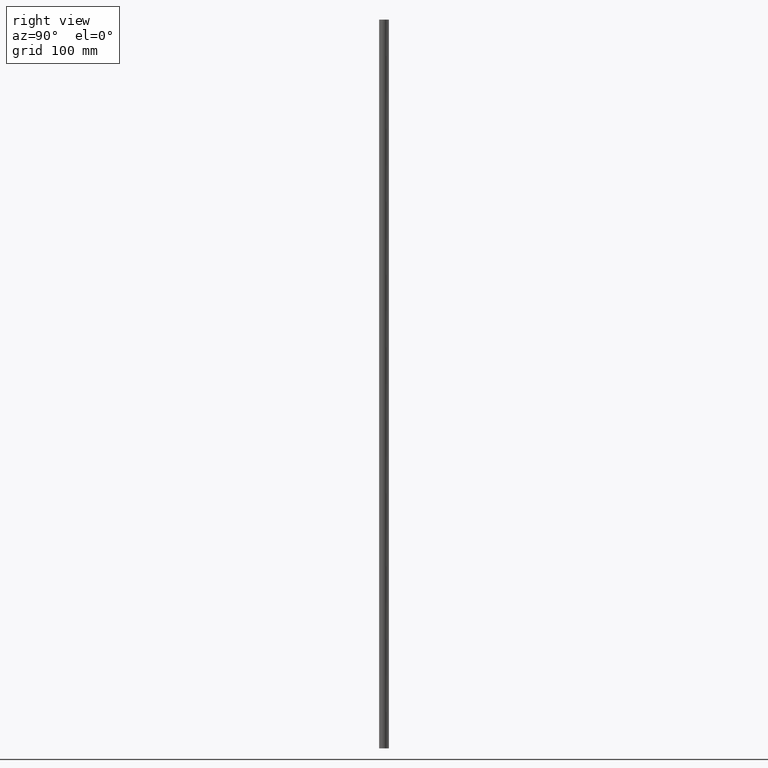
[diagram: clean part render]
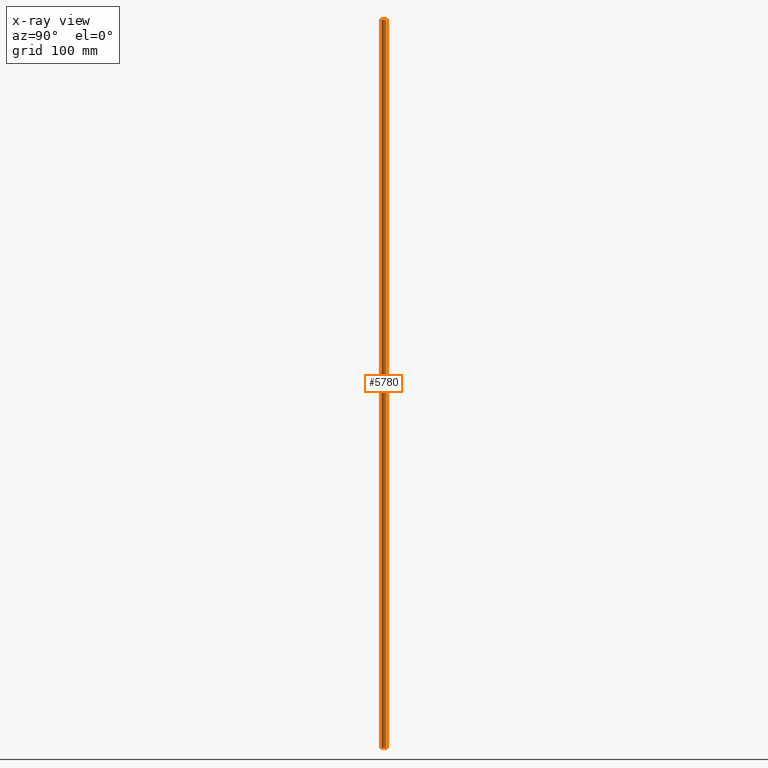
[diagram: x-ray — body ghosted, one internal face saturated and labeled with its STEP entity id]
A machine part, right view, then the same camera in x-ray: the body is ghosted and one INTERNAL B-rep face — a face not visible from any outside direction — is saturated and labeled: STEP entity #5780.
In plain terms, the highlighted face is a freeform B-spline surface patch.
Its self-contained STEP definition (entity closure, byte-faithful):
#5678=CARTESIAN_POINT('',(0.236068469313517,-1.986019052727332,615.000000000000230));
#5679=CARTESIAN_POINT('',(0.179229457275955,-1.992775230897211,615.000000000000230));
#5680=CARTESIAN_POINT('',(0.122097079069714,-1.996269596843733,615.000000000000110));
#5681=CARTESIAN_POINT('',(-1.874172517774020,-2.118366675913447,615.0));
#5682=CARTESIAN_POINT('',(-1.996269596843733,-0.122097079069714,615.000000000000110));
#5683=CARTESIAN_POINT('',(-2.118366675913447,1.874172517774020,615.0));
#5684=CARTESIAN_POINT('',(-0.122097079069714,1.996269596843733,615.000000000000110));
#5685=CARTESIAN_POINT('',(0.236068469313517,-1.986019052727332,-15.375000000000005));
#5686=CARTESIAN_POINT('',(0.179229457275955,-1.992775230897211,-15.375000000000004));
#5687=CARTESIAN_POINT('',(0.122097079069714,-1.996269596843733,-15.375000000000000));
#5688=CARTESIAN_POINT('',(-1.874172517774020,-2.118366675913447,-15.375000000000002));
#5689=CARTESIAN_POINT('',(-1.996269596843733,-0.122097079069714,-15.375000000000000));
#5690=CARTESIAN_POINT('',(-2.118366675913447,1.874172517774020,-15.375000000000002));
#5691=CARTESIAN_POINT('',(-0.122097079069714,1.996269596843733,-15.375000000000000));
#5699=(BOUNDED_SURFACE()B_SPLINE_SURFACE(2,1,((#5678,#5685),(#5679,#5686),(#5680,#5687),(#5681,#5688),(#5682,#5689),(#5683,#5690),(#5684,#5691)),.UNSPECIFIED.,.F.,.F.,.U.)B_SPLINE_SURFACE_WITH_KNOTS((3,2,2,3),(2,2),(0.0,0.132548339959391,3.446256838944149,6.759965337928908),(0.0,630.375000000000230),.UNSPECIFIED.)GEOMETRIC_REPRESENTATION_ITEM()RATIONAL_B_SPLINE_SURFACE(((0.977505800795127,0.977505800795127),(0.988284271247462,0.988284271247462),(1.0,1.0),(0.707106781186548,0.707106781186548),(1.0,1.0),(0.707106781186548,0.707106781186548),(1.0,1.0)))REPRESENTATION_ITEM('')SURFACE());
#5700=CARTESIAN_POINT('',(0.236068472497990,-1.986019052348810,-2.634989E-014));
#5701=VERTEX_POINT('',#5700);
#5702=CARTESIAN_POINT('',(-2.0,0.0,0.0));
#5703=VERTEX_POINT('',#5702);
#5704=CARTESIAN_POINT('',(0.236068472497990,-1.986019052348810,-2.634989E-014));
#5705=CARTESIAN_POINT('',(0.118448242521959,-2.000000000000000,0.0));
#5706=CARTESIAN_POINT('',(0.0,-2.0,0.0));
#5707=CARTESIAN_POINT('',(-2.000000000000000,-2.000000000000000,0.0));
#5708=CARTESIAN_POINT('',(-2.0,0.0,0.0));
#5716=(BOUNDED_CURVE()B_SPLINE_CURVE(2,(#5704,#5705,#5706,#5707,#5708),.UNSPECIFIED.,.F.,.U.)B_SPLINE_CURVE_WITH_KNOTS((3,2,3),(0.229562472973669,0.250000000000000,0.500000000000000),.UNSPECIFIED.)CURVE()GEOMETRIC_REPRESENTATION_ITEM()RATIONAL_B_SPLINE_CURVE((0.956026753125593,0.976055947698684,1.0,0.707106781186548,1.0))REPRESENTATION_ITEM(''));
#5717=EDGE_CURVE('',#5701,#5703,#5716,.T.);
#5718=ORIENTED_EDGE('',*,*,#5717,.F.);
#5719=CARTESIAN_POINT('',(0.236068472497993,-1.986019052348810,600.0));
#5720=VERTEX_POINT('',#5719);
#5721=CARTESIAN_POINT('',(0.236068472497993,-1.986019052348810,600.0));
#5722=CARTESIAN_POINT('',(0.236068472497990,-1.986019052348810,-2.634989E-014));
#5723=QUASI_UNIFORM_CURVE('',1,(#5721,#5722),.UNSPECIFIED.,.F.,.U.);
#5724=EDGE_CURVE('',#5720,#5701,#5723,.T.);
#5725=ORIENTED_EDGE('',*,*,#5724,.F.);
#5726=CARTESIAN_POINT('',(-2.0,0.0,600.0));
#5727=VERTEX_POINT('',#5726);
#5728=CARTESIAN_POINT('',(0.236068472497993,-1.986019052348809,600.0));
#5729=CARTESIAN_POINT('',(0.118448242521962,-2.0,600.0));
#5730=CARTESIAN_POINT('',(0.0,-2.0,600.0));
#5731=CARTESIAN_POINT('',(-2.000000000000000,-2.000000000000000,599.999999999999890));
#5732=CARTESIAN_POINT('',(-2.0,0.0,600.0));
#5740=(BOUNDED_CURVE()B_SPLINE_CURVE(2,(#5728,#5729,#5730,#5731,#5732),.UNSPECIFIED.,.F.,.U.)B_SPLINE_CURVE_WITH_KNOTS((3,2,3),(0.229562472973669,0.250000000000000,0.500000000000000),.UNSPECIFIED.)CURVE()GEOMETRIC_REPRESENTATION_ITEM()RATIONAL_B_SPLINE_CURVE((0.956026753125591,0.976055947698684,1.0,0.707106781186548,1.0))REPRESENTATION_ITEM(''));
#5741=EDGE_CURVE('',#5720,#5727,#5740,.T.);
#5742=ORIENTED_EDGE('',*,*,#5741,.T.);
#5743=CARTESIAN_POINT('',(-0.122098087554696,1.996269535161638,600.0));
#5744=VERTEX_POINT('',#5743);
#5745=CARTESIAN_POINT('',(-2.0,0.0,600.0));
#5746=CARTESIAN_POINT('',(-2.0,1.881411181574732,600.0));
#5747=CARTESIAN_POINT('',(-0.122098087554711,1.996269535161893,600.0));
#5755=(BOUNDED_CURVE()B_SPLINE_CURVE(2,(#5745,#5746,#5747),.UNSPECIFIED.,.F.,.U.)B_SPLINE_CURVE_WITH_KNOTS((3,3),(0.500000000000000,0.739332875073965),.UNSPECIFIED.)CURVE()GEOMETRIC_REPRESENTATION_ITEM()RATIONAL_B_SPLINE_CURVE((1.0,0.719604095406834,0.976071854855649))REPRESENTATION_ITEM(''));
#5756=EDGE_CURVE('',#5727,#5744,#5755,.T.);
#5757=ORIENTED_EDGE('',*,*,#5756,.T.);
#5758=CARTESIAN_POINT('',(-0.122098087554696,1.996269535161638,4.263256E-014));
#5759=VERTEX_POINT('',#5758);
#5760=CARTESIAN_POINT('',(-0.122098087554696,1.996269535161638,600.0));
#5761=CARTESIAN_POINT('',(-0.122098087554696,1.996269535161638,4.263256E-014));
#5762=QUASI_UNIFORM_CURVE('',1,(#5760,#5761),.UNSPECIFIED.,.F.,.U.);
#5763=EDGE_CURVE('',#5744,#5759,#5762,.T.);
#5764=ORIENTED_EDGE('',*,*,#5763,.T.);
#5765=CARTESIAN_POINT('',(-2.0,0.0,0.0));
#5766=CARTESIAN_POINT('',(-2.0,1.881411181574732,0.0));
#5767=CARTESIAN_POINT('',(-0.122098087554696,1.996269535161638,4.263256E-014));
#5775=(BOUNDED_CURVE()B_SPLINE_CURVE(2,(#5765,#5766,#5767),.UNSPECIFIED.,.F.,.U.)B_SPLINE_CURVE_WITH_KNOTS((3,3),(0.500000000000000,0.739332875073965),.UNSPECIFIED.)CURVE()GEOMETRIC_REPRESENTATION_ITEM()RATIONAL_B_SPLINE_CURVE((1.0,0.719604095406834,0.976071854855649))REPRESENTATION_ITEM(''));
#5776=EDGE_CURVE('',#5703,#5759,#5775,.T.);
#5777=ORIENTED_EDGE('',*,*,#5776,.F.);
#5778=EDGE_LOOP('',(#5718,#5725,#5742,#5757,#5764,#5777));
#5779=FACE_OUTER_BOUND('',#5778,.T.);
#5780=ADVANCED_FACE('',(#5779),#5699,.T.);